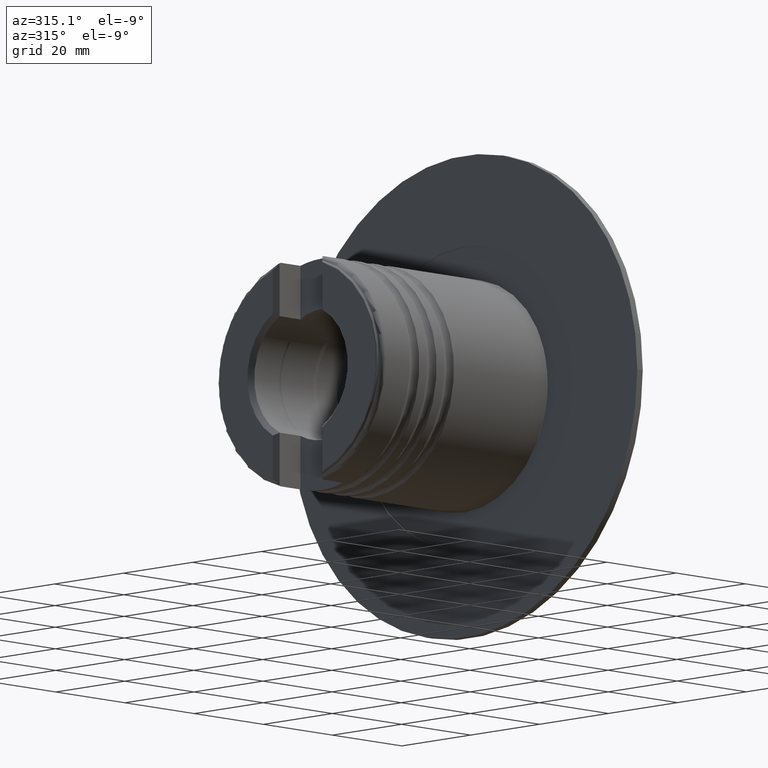
[diagram: clean part render]
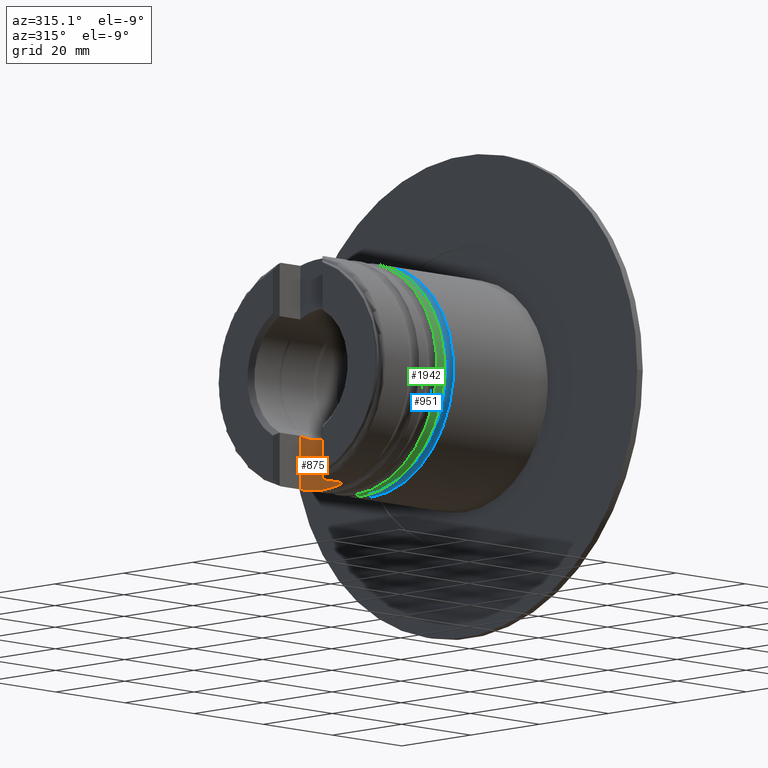
[diagram: same view with three faces highlighted in distinct colors, each labeled with its STEP entity id]
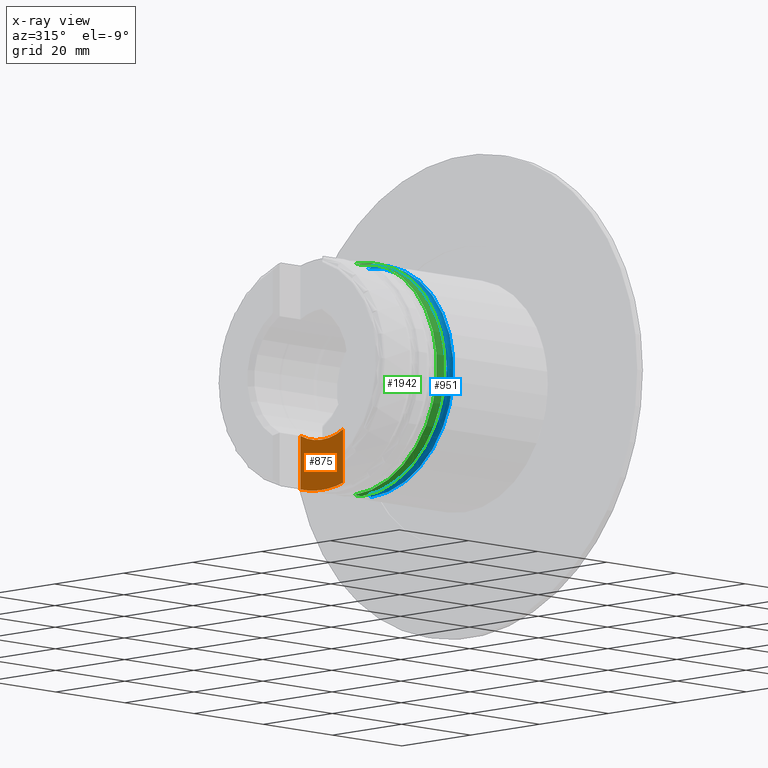
[diagram: x-ray of the same camera — body ghosted, the three highlighted faces saturated]
A machine part, auxiliary view with three faces highlighted in distinct colors.
The next image is the same camera in x-ray (body ghosted, the three faces saturated) — at least one of them is partly hidden behind the body in this view.
Their STEP definitions:

[orange] entity #875 — the highlighted planar face has unit normal (1, 0, 0).
#61 = DIRECTION ( 'NONE',  ( 0.0000000000000000000, 8.881784197001252323E-15, -1.000000000000000000 ) ) ;
#164 = AXIS2_PLACEMENT_3D ( 'NONE', #3207, #2820, #4044 ) ;
#181 = VERTEX_POINT ( 'NONE', #308 ) ;
#308 = CARTESIAN_POINT ( 'NONE',  ( -42.79994866000001252, 6.199999999999992184, -23.18534019590827100 ) ) ;
#654 = VERTEX_POINT ( 'NONE', #1908 ) ;
#727 = EDGE_LOOP ( 'NONE', ( #995, #4569, #2261, #2834, #4477, #1377 ) ) ;
#756 = CARTESIAN_POINT ( 'NONE',  ( -42.79994866000001252, 6.199999999999993960, -25.00000000000000000 ) ) ;
#813 = CARTESIAN_POINT ( 'NONE',  ( -42.79994866000001252, 0.0000000000000000000, -13.57499999999999396 ) ) ;
#875 = ADVANCED_FACE ( 'NONE', ( #2020 ), #5260, .F. ) ;
#957 = DIRECTION ( 'NONE',  ( -1.000000000000000000, 0.0000000000000000000, -0.0000000000000000000 ) ) ;
#995 = ORIENTED_EDGE ( 'NONE', *, *, #2446, .T. ) ;
#1138 = AXIS2_PLACEMENT_3D ( 'NONE', #3798, #3365, #61 ) ;
#1229 = VERTEX_POINT ( 'NONE', #813 ) ;
#1377 = ORIENTED_EDGE ( 'NONE', *, *, #5184, .F. ) ;
#1381 = EDGE_CURVE ( 'NONE', #654, #4617, #5091, .T. ) ;
#1560 = VERTEX_POINT ( 'NONE', #2636 ) ;
#1848 = DIRECTION ( 'NONE',  ( -1.000000000000000000, 0.0000000000000000000, -0.0000000000000000000 ) ) ;
#1864 = CARTESIAN_POINT ( 'NONE',  ( -42.79994866000001252, 0.0000000000000000000, 0.0000000000000000000 ) ) ;
#1908 = CARTESIAN_POINT ( 'NONE',  ( -42.79994866000001252, -6.200000000000005507, -23.18534019590826745 ) ) ;
#1952 = VECTOR ( 'NONE', #2056, 1000.000000000000000 ) ;
#2020 = FACE_OUTER_BOUND ( 'NONE', #727, .T. ) ;
#2056 = DIRECTION ( 'NONE',  ( -0.0000000000000000000, -0.0000000000000000000, 1.000000000000000000 ) ) ;
#2261 = ORIENTED_EDGE ( 'NONE', *, *, #1381, .T. ) ;
#2393 = VECTOR ( 'NONE', #4740, 1000.000000000000000 ) ;
#2395 = CIRCLE ( 'NONE', #3700, 13.57499999999999396 ) ;
#2446 = EDGE_CURVE ( 'NONE', #181, #3707, #2727, .T. ) ;
#2636 = CARTESIAN_POINT ( 'NONE',  ( -42.79994866000001252, 6.199999999999992184, -12.07644918839970494 ) ) ;
#2714 = CARTESIAN_POINT ( 'NONE',  ( -42.79994866000001252, 0.0000000000000000000, 0.0000000000000000000 ) ) ;
#2727 = CIRCLE ( 'NONE', #1138, 23.99999999999999289 ) ;
#2820 = DIRECTION ( 'NONE',  ( 1.000000000000000000, -0.0000000000000000000, 0.0000000000000000000 ) ) ;
#2834 = ORIENTED_EDGE ( 'NONE', *, *, #3725, .F. ) ;
#3035 = CARTESIAN_POINT ( 'NONE',  ( -42.79994866000001252, 0.0000000000000000000, 0.0000000000000000000 ) ) ;
#3154 = DIRECTION ( 'NONE',  ( -1.000000000000000000, 0.0000000000000000000, -0.0000000000000000000 ) ) ;
#3207 = CARTESIAN_POINT ( 'NONE',  ( -42.79994866000001252, -6.200000000000005507, -25.00000000000000000 ) ) ;
#3235 = CIRCLE ( 'NONE', #4444, 13.57499999999999396 ) ;
#3365 = DIRECTION ( 'NONE',  ( -1.000000000000000000, 0.0000000000000000000, -0.0000000000000000000 ) ) ;
#3376 = LINE ( 'NONE', #756, #1952 ) ;
#3503 = DIRECTION ( 'NONE',  ( 0.0000000000000000000, 0.0000000000000000000, -1.000000000000000000 ) ) ;
#3553 = CIRCLE ( 'NONE', #3615, 23.99999999999999289 ) ;
#3571 = EDGE_CURVE ( 'NONE', #1560, #1229, #2395, .T. ) ;
#3615 = AXIS2_PLACEMENT_3D ( 'NONE', #2714, #1848, #4351 ) ;
#3649 = EDGE_CURVE ( 'NONE', #3707, #654, #3553, .T. ) ;
#3700 = AXIS2_PLACEMENT_3D ( 'NONE', #3035, #957, #3845 ) ;
#3707 = VERTEX_POINT ( 'NONE', #3923 ) ;
#3725 = EDGE_CURVE ( 'NONE', #1229, #4617, #3235, .T. ) ;
#3798 = CARTESIAN_POINT ( 'NONE',  ( -42.79994866000001252, 0.0000000000000000000, 0.0000000000000000000 ) ) ;
#3845 = DIRECTION ( 'NONE',  ( 0.0000000000000000000, -2.664535259100375303E-15, -1.000000000000000000 ) ) ;
#3923 = CARTESIAN_POINT ( 'NONE',  ( -42.79994866000001252, 0.0000000000000000000, -23.99999999999999289 ) ) ;
#3971 = CARTESIAN_POINT ( 'NONE',  ( -42.79994866000001252, -6.200000000000005507, -25.00000000000000000 ) ) ;
#4044 = DIRECTION ( 'NONE',  ( 0.0000000000000000000, 0.0000000000000000000, -1.000000000000000000 ) ) ;
#4351 = DIRECTION ( 'NONE',  ( 0.0000000000000000000, 0.0000000000000000000, -1.000000000000000000 ) ) ;
#4444 = AXIS2_PLACEMENT_3D ( 'NONE', #1864, #3154, #3503 ) ;
#4477 = ORIENTED_EDGE ( 'NONE', *, *, #3571, .F. ) ;
#4569 = ORIENTED_EDGE ( 'NONE', *, *, #3649, .T. ) ;
#4617 = VERTEX_POINT ( 'NONE', #4825 ) ;
#4740 = DIRECTION ( 'NONE',  ( -0.0000000000000000000, -0.0000000000000000000, 1.000000000000000000 ) ) ;
#4825 = CARTESIAN_POINT ( 'NONE',  ( -42.79994866000001252, -6.200000000000005507, -12.07644918839970316 ) ) ;
#5091 = LINE ( 'NONE', #3971, #2393 ) ;
#5184 = EDGE_CURVE ( 'NONE', #181, #1560, #3376, .T. ) ;
#5260 = PLANE ( 'NONE',  #164 ) ;

[blue] entity #951 — the highlighted toroidal blend (fillet) surface has major radius 24.75 mm and minor (blend) radius 1.5 mm.
#92 = CARTESIAN_POINT ( 'NONE',  ( -28.55601876177603771, 0.0000000000000000000, 0.0000000000000000000 ) ) ;
#287 = EDGE_CURVE ( 'NONE', #1140, #2909, #4966, .T. ) ;
#524 = DIRECTION ( 'NONE',  ( 0.0000000000000000000, 0.0000000000000000000, 1.000000000000000000 ) ) ;
#644 = EDGE_LOOP ( 'NONE', ( #646, #4146, #3046, #3731 ) ) ;
#646 = ORIENTED_EDGE ( 'NONE', *, *, #1053, .F. ) ;
#685 = CARTESIAN_POINT ( 'NONE',  ( -28.55601876177603771, 2.928346610902346597E-15, -23.91176470588234793 ) ) ;
#949 = CARTESIAN_POINT ( 'NONE',  ( -29.79994866000000897, 0.0000000000000000000, 23.24999999999999289 ) ) ;
#951 = ADVANCED_FACE ( 'NONE', ( #2792 ), #1114, .F. ) ;
#960 = DIRECTION ( 'NONE',  ( 0.0000000000000000000, -1.000000000000000000, 0.0000000000000000000 ) ) ;
#1027 = AXIS2_PLACEMENT_3D ( 'NONE', #1835, #4711, #5119 ) ;
#1053 = EDGE_CURVE ( 'NONE', #4582, #1140, #4976, .T. ) ;
#1114 = TOROIDAL_SURFACE ( 'NONE', #3678, 24.74999999999999289, 1.499999999999999778 ) ;
#1140 = VERTEX_POINT ( 'NONE', #949 ) ;
#1239 = DIRECTION ( 'NONE',  ( -1.000000000000000000, -0.0000000000000000000, -0.0000000000000000000 ) ) ;
#1391 = AXIS2_PLACEMENT_3D ( 'NONE', #4668, #960, #4129 ) ;
#1732 = AXIS2_PLACEMENT_3D ( 'NONE', #92, #4604, #2144 ) ;
#1835 = CARTESIAN_POINT ( 'NONE',  ( -29.79994866000000897, 3.031000827889698467E-15, -24.74999999999999289 ) ) ;
#2077 = CARTESIAN_POINT ( 'NONE',  ( -28.55601876177603771, 0.0000000000000000000, 23.91176470588234793 ) ) ;
#2144 = DIRECTION ( 'NONE',  ( 0.0000000000000000000, 0.0000000000000000000, 1.000000000000000000 ) ) ;
#2319 = CARTESIAN_POINT ( 'NONE',  ( -29.79994866000000897, 2.847303808017595350E-15, -23.24999999999999289 ) ) ;
#2410 = DIRECTION ( 'NONE',  ( 0.0000000000000000000, 0.0000000000000000000, 1.000000000000000000 ) ) ;
#2792 = FACE_OUTER_BOUND ( 'NONE', #644, .T. ) ;
#2909 = VERTEX_POINT ( 'NONE', #2077 ) ;
#2927 = AXIS2_PLACEMENT_3D ( 'NONE', #3729, #2985, #524 ) ;
#2985 = DIRECTION ( 'NONE',  ( -1.000000000000000000, -0.0000000000000000000, -0.0000000000000000000 ) ) ;
#2995 = EDGE_CURVE ( 'NONE', #3761, #2909, #5094, .T. ) ;
#3046 = ORIENTED_EDGE ( 'NONE', *, *, #2995, .T. ) ;
#3221 = EDGE_CURVE ( 'NONE', #4582, #3761, #5164, .T. ) ;
#3678 = AXIS2_PLACEMENT_3D ( 'NONE', #4890, #1239, #2410 ) ;
#3729 = CARTESIAN_POINT ( 'NONE',  ( -29.79994866000000897, 0.0000000000000000000, 0.0000000000000000000 ) ) ;
#3731 = ORIENTED_EDGE ( 'NONE', *, *, #287, .F. ) ;
#3761 = VERTEX_POINT ( 'NONE', #685 ) ;
#4129 = DIRECTION ( 'NONE',  ( 0.0000000000000000000, 0.0000000000000000000, -1.000000000000000000 ) ) ;
#4146 = ORIENTED_EDGE ( 'NONE', *, *, #3221, .T. ) ;
#4582 = VERTEX_POINT ( 'NONE', #2319 ) ;
#4604 = DIRECTION ( 'NONE',  ( -1.000000000000000000, -0.0000000000000000000, -0.0000000000000000000 ) ) ;
#4668 = CARTESIAN_POINT ( 'NONE',  ( -29.79994866000000897, 0.0000000000000000000, 24.74999999999999289 ) ) ;
#4711 = DIRECTION ( 'NONE',  ( -0.0000000000000000000, 1.000000000000000000, 1.224646799147353207E-16 ) ) ;
#4890 = CARTESIAN_POINT ( 'NONE',  ( -29.79994866000000897, 0.0000000000000000000, 0.0000000000000000000 ) ) ;
#4966 = CIRCLE ( 'NONE', #1391, 1.500000000000001332 ) ;
#4976 = CIRCLE ( 'NONE', #2927, 23.24999999999999289 ) ;
#5094 = CIRCLE ( 'NONE', #1732, 23.91176470588234793 ) ;
#5119 = DIRECTION ( 'NONE',  ( 0.0000000000000000000, -1.224646799147351975E-16, 1.000000000000000000 ) ) ;
#5164 = CIRCLE ( 'NONE', #1027, 1.500000000000001332 ) ;

[green] entity #1942 — the highlighted cylindrical surface (partial cylindrical patch) has radius 24 mm, axis along (1, 0, 0).
#140 = ORIENTED_EDGE ( 'NONE', *, *, #4030, .T. ) ;
#179 = DIRECTION ( 'NONE',  ( 0.0000000000000000000, 0.0000000000000000000, 1.000000000000000000 ) ) ;
#481 = VECTOR ( 'NONE', #5011, 1000.000000000000000 ) ;
#582 = DIRECTION ( 'NONE',  ( -1.000000000000000000, -0.0000000000000000000, -0.0000000000000000000 ) ) ;
#602 = DIRECTION ( 'NONE',  ( 0.0000000000000000000, 0.0000000000000000000, 1.000000000000000000 ) ) ;
#619 = LINE ( 'NONE', #1981, #2871 ) ;
#865 = EDGE_CURVE ( 'NONE', #4046, #3939, #619, .T. ) ;
#891 = ORIENTED_EDGE ( 'NONE', *, *, #3024, .F. ) ;
#1202 = ORIENTED_EDGE ( 'NONE', *, *, #3515, .F. ) ;
#1215 = AXIS2_PLACEMENT_3D ( 'NONE', #2923, #2544, #3291 ) ;
#1564 = LINE ( 'NONE', #4615, #481 ) ;
#1621 = VERTEX_POINT ( 'NONE', #2155 ) ;
#1677 = AXIS2_PLACEMENT_3D ( 'NONE', #5101, #582, #602 ) ;
#1783 = DIRECTION ( 'NONE',  ( -1.000000000000000000, -0.0000000000000000000, -0.0000000000000000000 ) ) ;
#1834 = CARTESIAN_POINT ( 'NONE',  ( -33.39016144201283964, 0.0000000000000000000, -23.99999999999999289 ) ) ;
#1942 = ADVANCED_FACE ( 'NONE', ( #3944 ), #5027, .T. ) ;
#1965 = DIRECTION ( 'NONE',  ( 1.000000000000000000, -0.0000000000000000000, -0.0000000000000000000 ) ) ;
#1981 = CARTESIAN_POINT ( 'NONE',  ( 0.0000000000000000000, 0.0000000000000000000, -23.99999999999999289 ) ) ;
#2155 = CARTESIAN_POINT ( 'NONE',  ( -31.20973587798717475, 0.0000000000000000000, 23.99999999999999289 ) ) ;
#2187 = EDGE_LOOP ( 'NONE', ( #891, #1202, #3468, #140 ) ) ;
#2459 = CIRCLE ( 'NONE', #1677, 23.99999999999999289 ) ;
#2544 = DIRECTION ( 'NONE',  ( 1.000000000000000000, -0.0000000000000000000, -0.0000000000000000000 ) ) ;
#2690 = CARTESIAN_POINT ( 'NONE',  ( -33.39016144201283964, 0.0000000000000000000, 0.0000000000000000000 ) ) ;
#2759 = AXIS2_PLACEMENT_3D ( 'NONE', #2690, #1783, #179 ) ;
#2871 = VECTOR ( 'NONE', #1965, 1000.000000000000000 ) ;
#2923 = CARTESIAN_POINT ( 'NONE',  ( 0.0000000000000000000, 0.0000000000000000000, 0.0000000000000000000 ) ) ;
#3024 = EDGE_CURVE ( 'NONE', #5149, #1621, #1564, .T. ) ;
#3291 = DIRECTION ( 'NONE',  ( 0.0000000000000000000, 0.0000000000000000000, -1.000000000000000000 ) ) ;
#3468 = ORIENTED_EDGE ( 'NONE', *, *, #865, .T. ) ;
#3515 = EDGE_CURVE ( 'NONE', #4046, #5149, #3702, .T. ) ;
#3702 = CIRCLE ( 'NONE', #2759, 23.99999999999999289 ) ;
#3788 = CARTESIAN_POINT ( 'NONE',  ( -31.20973587798717475, 2.939152317953647106E-15, -23.99999999999999289 ) ) ;
#3939 = VERTEX_POINT ( 'NONE', #3788 ) ;
#3944 = FACE_OUTER_BOUND ( 'NONE', #2187, .T. ) ;
#4030 = EDGE_CURVE ( 'NONE', #3939, #1621, #2459, .T. ) ;
#4046 = VERTEX_POINT ( 'NONE', #1834 ) ;
#4559 = CARTESIAN_POINT ( 'NONE',  ( -33.39016144201283964, 2.939152317953647106E-15, 23.99999999999999289 ) ) ;
#4615 = CARTESIAN_POINT ( 'NONE',  ( 0.0000000000000000000, 2.939152317953647106E-15, 23.99999999999999289 ) ) ;
#5011 = DIRECTION ( 'NONE',  ( 1.000000000000000000, -0.0000000000000000000, -0.0000000000000000000 ) ) ;
#5027 = CYLINDRICAL_SURFACE ( 'NONE', #1215, 23.99999999999999289 ) ;
#5101 = CARTESIAN_POINT ( 'NONE',  ( -31.20973587798717475, 0.0000000000000000000, 0.0000000000000000000 ) ) ;
#5149 = VERTEX_POINT ( 'NONE', #4559 ) ;